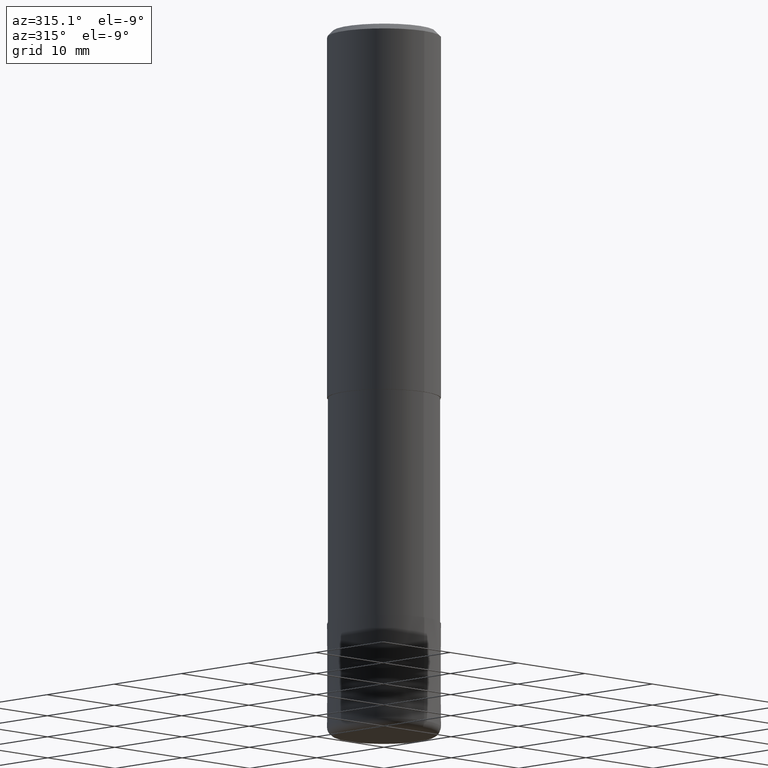
[diagram: clean part render]
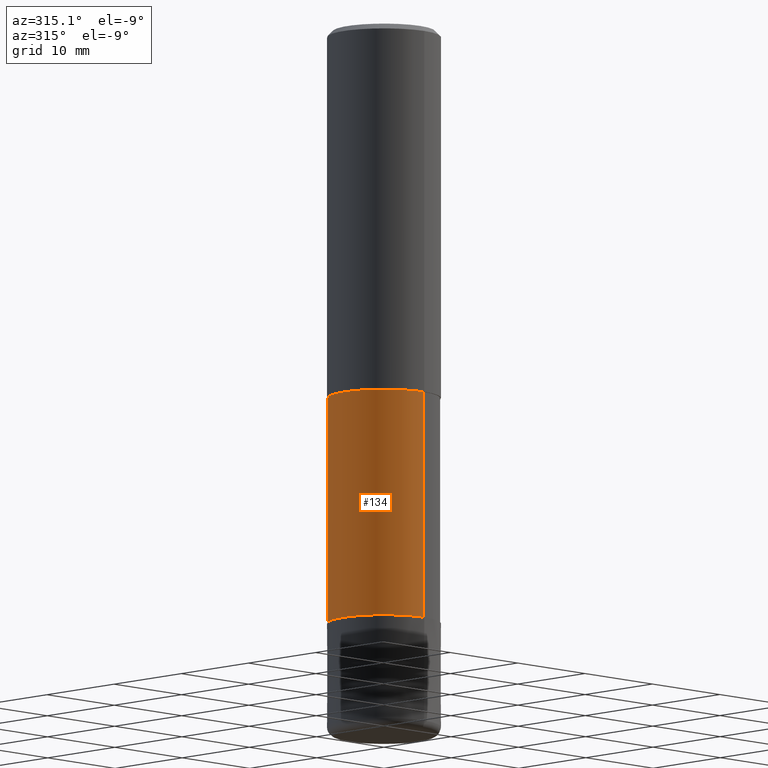
[diagram: same view with one face highlighted and labeled with its STEP entity id]
A machine part, auxiliary view. The second image highlights one B-rep face of the part: STEP entity #134.
In plain terms, the highlighted cylindrical surface (partial cylindrical patch) has radius 5.91 mm, axis along (-0, -0, 1).
Its self-contained STEP definition (entity closure, byte-faithful):
#134=ADVANCED_FACE('',(#277),#278,.T.);
#154=EDGE_CURVE('',#178,#206,#303,.T.);
#168=VERTEX_POINT('',#319);
#172=VERTEX_POINT('',#324);
#176=EDGE_CURVE('',#206,#168,#328,.T.);
#178=VERTEX_POINT('',#330);
#190=EDGE_CURVE('',#178,#172,#343,.T.);
#194=EDGE_CURVE('',#168,#172,#347,.T.);
#206=VERTEX_POINT('',#359);
#277=FACE_OUTER_BOUND('',#431,.T.);
#278=CYLINDRICAL_SURFACE('',#432,5.90995);
#303=LINE('',#461,#462);
#319=CARTESIAN_POINT('',(0.0,5.90995,-39.0));
#324=CARTESIAN_POINT('',(0.0,5.90995,-63.0));
#328=CIRCLE('',#491,5.90995);
#330=CARTESIAN_POINT('',(7.23736232077256E-016,-5.90995,-63.0));
#343=CIRCLE('',#510,5.90995);
#347=LINE('',#515,#516);
#359=CARTESIAN_POINT('',(7.23736232077256E-016,-5.90995,-39.0));
#431=EDGE_LOOP('',(#606,#607,#608,#609));
#432=AXIS2_PLACEMENT_3D('',#610,#611,#612);
#461=CARTESIAN_POINT('',(7.23736232077256E-016,-5.90995,-51.0));
#462=VECTOR('',#652,1.0);
#491=AXIS2_PLACEMENT_3D('',#683,#684,#685);
#510=AXIS2_PLACEMENT_3D('',#698,#699,#700);
#515=CARTESIAN_POINT('',(-7.23736232077256E-016,5.90995,-51.0));
#516=VECTOR('',#701,1.0);
#606=ORIENTED_EDGE('',*,*,#194,.T.);
#607=ORIENTED_EDGE('',*,*,#190,.F.);
#608=ORIENTED_EDGE('',*,*,#154,.T.);
#609=ORIENTED_EDGE('',*,*,#176,.T.);
#610=CARTESIAN_POINT('',(0.0,0.0,-51.0));
#611=DIRECTION('',(-0.0,-0.0,1.0));
#612=DIRECTION('',(0.0,1.0,0.0));
#652=DIRECTION('',(-0.0,-0.0,1.0));
#683=CARTESIAN_POINT('',(0.0,0.0,-39.0));
#684=DIRECTION('',(0.0,0.0,-1.0));
#685=DIRECTION('',(0.0,1.0,0.0));
#698=CARTESIAN_POINT('',(0.0,0.0,-63.0));
#699=DIRECTION('',(0.0,0.0,-1.0));
#700=DIRECTION('',(0.0,1.0,0.0));
#701=DIRECTION('',(0.0,0.0,-1.0));